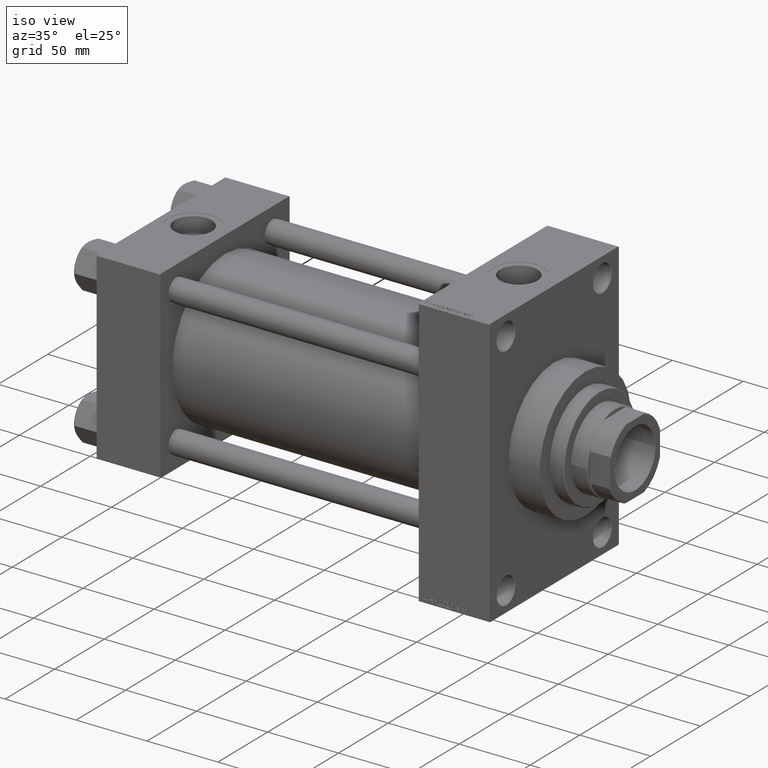
[diagram: clean part render]
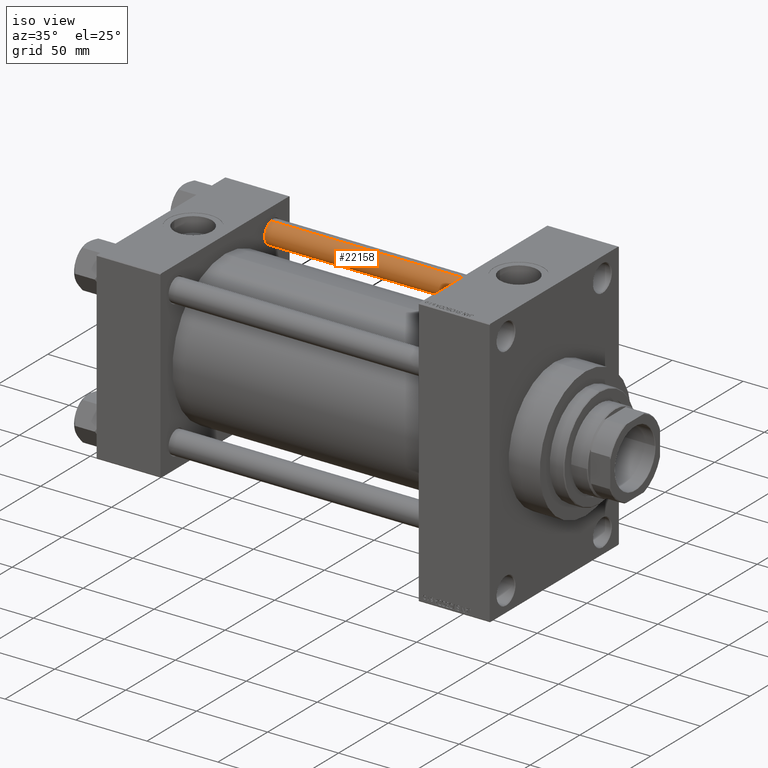
[diagram: same view with one face highlighted and labeled with its STEP entity id]
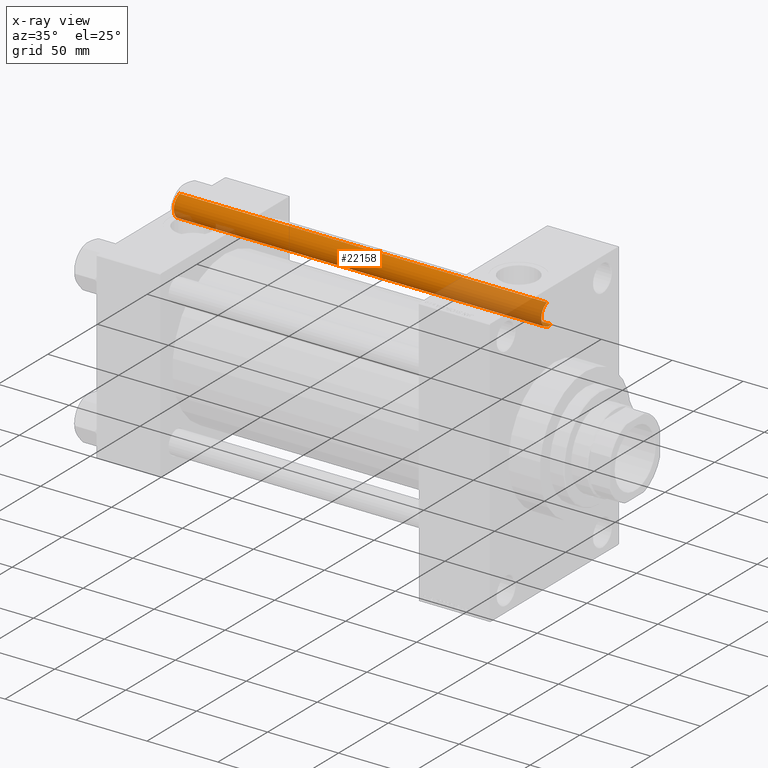
[diagram: x-ray of the same camera — body ghosted, the highlighted face saturated]
A machine part, iso view. The second image highlights one B-rep face of the part: STEP entity #22158.
The next image is the same camera in x-ray: the body ghosted, the highlighted face saturated — about 28% of this face is hidden behind the body in this view.
In plain terms, the highlighted cylindrical surface (edge-blend (fillet) strip) has radius 8 mm, axis along (-1, -0, 0).
Its self-contained STEP definition (entity closure, byte-faithful):
#105 = ORIENTED_EDGE ( 'NONE', *, *, #18910, .T. ) ;
#1519 = EDGE_CURVE ( 'NONE', #41845, #4949, #25790, .T. ) ;
#2746 = EDGE_CURVE ( 'NONE', #13459, #18880, #39578, .T. ) ;
#4173 = FACE_OUTER_BOUND ( 'NONE', #15478, .T. ) ;
#4223 = CARTESIAN_POINT ( 'NONE',  ( 0.000000000000000000, 0.000000000000000000, 0.4999999999999449329 ) ) ;
#4949 = VERTEX_POINT ( 'NONE', #21837 ) ;
#5364 = CARTESIAN_POINT ( 'NONE',  ( 0.000000000000000000, 0.000000000000000000, 259.5000000000000568 ) ) ;
#6737 = DIRECTION ( 'NONE',  ( -0.000000000000000000, -0.000000000000000000, -1.000000000000000000 ) ) ;
#7770 = CARTESIAN_POINT ( 'NONE',  ( 0.000000000000000000, 0.000000000000000000, 260.0000000000000000 ) ) ;
#10069 = AXIS2_PLACEMENT_3D ( 'NONE', #4223, #36810, #18940 ) ;
#11156 = DIRECTION ( 'NONE',  ( -0.000000000000000000, -0.000000000000000000, -1.000000000000000000 ) ) ;
#13090 = DIRECTION ( 'NONE',  ( 1.000000000000000000, 0.000000000000000000, 0.000000000000000000 ) ) ;
#13459 = VERTEX_POINT ( 'NONE', #36152 ) ;
#15192 = ORIENTED_EDGE ( 'NONE', *, *, #21874, .T. ) ;
#15478 = EDGE_LOOP ( 'NONE', ( #20587, #105, #21383, #15192 ) ) ;
#16952 = CARTESIAN_POINT ( 'NONE',  ( -8.000000000000000000, 0.000000000000000000, 0.4999999999999449329 ) ) ;
#18153 = VECTOR ( 'NONE', #42719, 1000.000000000000000 ) ;
#18880 = VERTEX_POINT ( 'NONE', #16952 ) ;
#18910 = EDGE_CURVE ( 'NONE', #41845, #13459, #26893, .T. ) ;
#18940 = DIRECTION ( 'NONE',  ( 1.000000000000000000, 0.000000000000000000, 0.000000000000000000 ) ) ;
#19307 = CIRCLE ( 'NONE', #10069, 8.000000000000000000 ) ;
#20587 = ORIENTED_EDGE ( 'NONE', *, *, #1519, .F. ) ;
#21383 = ORIENTED_EDGE ( 'NONE', *, *, #2746, .T. ) ;
#21837 = CARTESIAN_POINT ( 'NONE',  ( 8.000000000000000000, 9.797174393178825657E-16, 0.4999999999999449329 ) ) ;
#21874 = EDGE_CURVE ( 'NONE', #18880, #4949, #19307, .T. ) ;
#22158 = ADVANCED_FACE ( 'NONE', ( #4173 ), #40609, .T. ) ;
#25790 = LINE ( 'NONE', #47537, #41083 ) ;
#26893 = CIRCLE ( 'NONE', #37051, 8.000000000000000000 ) ;
#29746 = DIRECTION ( 'NONE',  ( -1.000000000000000000, 0.000000000000000000, 0.000000000000000000 ) ) ;
#31626 = CARTESIAN_POINT ( 'NONE',  ( -8.000000000000000000, 0.000000000000000000, 260.0000000000000000 ) ) ;
#35049 = DIRECTION ( 'NONE',  ( 0.000000000000000000, 0.000000000000000000, -1.000000000000000000 ) ) ;
#36152 = CARTESIAN_POINT ( 'NONE',  ( -8.000000000000000000, 0.000000000000000000, 259.5000000000000568 ) ) ;
#36810 = DIRECTION ( 'NONE',  ( -0.000000000000000000, -0.000000000000000000, 1.000000000000000000 ) ) ;
#37051 = AXIS2_PLACEMENT_3D ( 'NONE', #5364, #35049, #13090 ) ;
#39578 = LINE ( 'NONE', #31626, #18153 ) ;
#40436 = CARTESIAN_POINT ( 'NONE',  ( 8.000000000000000000, 9.797174393178825657E-16, 259.5000000000000568 ) ) ;
#40609 = CYLINDRICAL_SURFACE ( 'NONE', #47053, 8.000000000000000000 ) ;
#41083 = VECTOR ( 'NONE', #6737, 1000.000000000000000 ) ;
#41845 = VERTEX_POINT ( 'NONE', #40436 ) ;
#42719 = DIRECTION ( 'NONE',  ( -0.000000000000000000, -0.000000000000000000, -1.000000000000000000 ) ) ;
#47053 = AXIS2_PLACEMENT_3D ( 'NONE', #7770, #11156, #29746 ) ;
#47537 = CARTESIAN_POINT ( 'NONE',  ( 8.000000000000000000, 9.797174393178825657E-16, 260.0000000000000000 ) ) ;